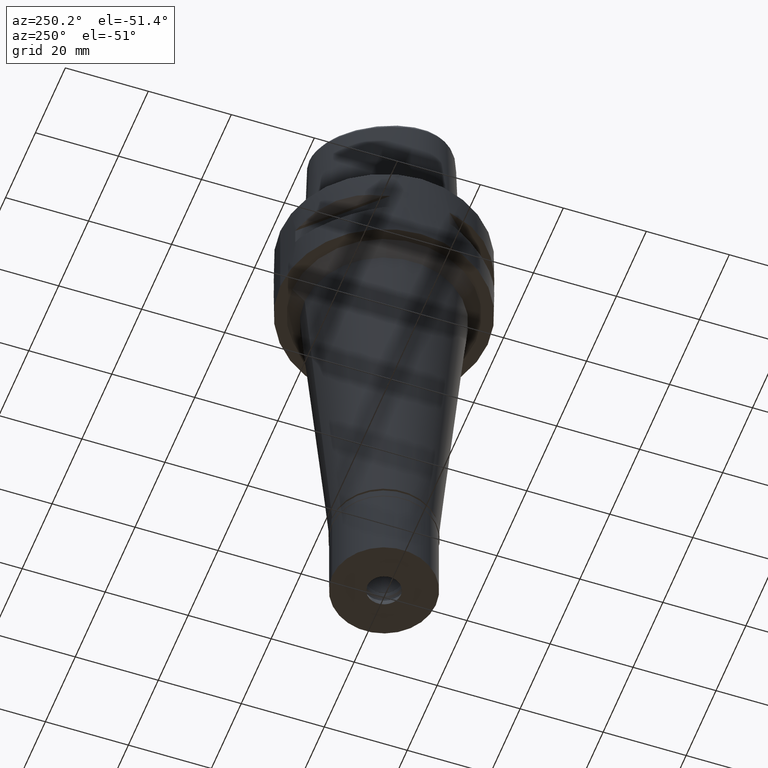
[diagram: clean part render]
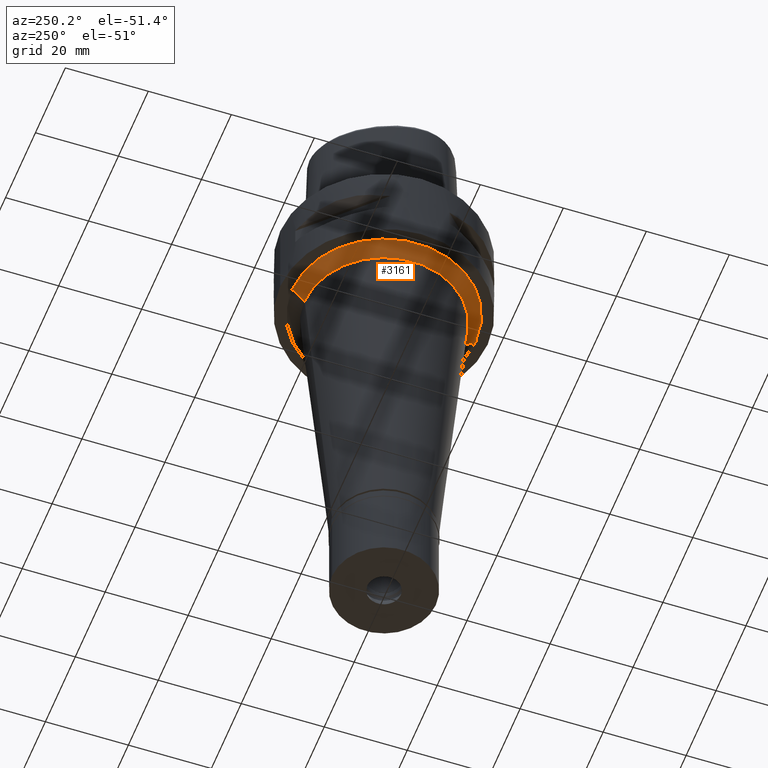
[diagram: same view with one face highlighted and labeled with its STEP entity id]
A machine part, auxiliary view. The second image highlights one B-rep face of the part: STEP entity #3161.
In plain terms, the highlighted conical surface has half-angle 45 deg.
Its self-contained STEP definition (entity closure, byte-faithful):
#301 = CONICAL_SURFACE ( 'NONE', #3428, 20.62289182890999939, 0.7853981633972997312 ) ;
#320 = CARTESIAN_POINT ( 'NONE',  ( 0.0000000000000000000, -22.12289182890999939, -20.00000000000000000 ) ) ;
#371 = VERTEX_POINT ( 'NONE', #434 ) ;
#392 = VERTEX_POINT ( 'NONE', #1990 ) ;
#434 = CARTESIAN_POINT ( 'NONE',  ( 0.0000000000000000000, 22.12289182890999939, -20.00000000000000000 ) ) ;
#457 = EDGE_CURVE ( 'NONE', #3805, #3162, #2167, .T. ) ;
#757 = CARTESIAN_POINT ( 'NONE',  ( 0.0000000000000000000, 0.0000000000000000000, -23.00000000000000000 ) ) ;
#1047 = EDGE_CURVE ( 'NONE', #392, #3805, #2226, .T. ) ;
#1049 = FACE_OUTER_BOUND ( 'NONE', #4550, .T. ) ;
#1148 = DIRECTION ( 'NONE',  ( 0.0000000000000000000, 1.000000000000000000, 0.0000000000000000000 ) ) ;
#1176 = CIRCLE ( 'NONE', #3752, 22.12289182890999939 ) ;
#1363 = LINE ( 'NONE', #2191, #4377 ) ;
#1414 = VECTOR ( 'NONE', #1855, 999.9999999999998863 ) ;
#1855 = DIRECTION ( 'NONE',  ( 0.0000000000000000000, 0.7071067811860981545, -0.7071067811869969910 ) ) ;
#1990 = CARTESIAN_POINT ( 'NONE',  ( 0.0000000000000000000, -22.12289182890999939, -20.00000000000000000 ) ) ;
#2031 = ORIENTED_EDGE ( 'NONE', *, *, #1047, .F. ) ;
#2166 = DIRECTION ( 'NONE',  ( 0.0000000000000000000, -0.7071067811860981545, -0.7071067811869969910 ) ) ;
#2167 = CIRCLE ( 'NONE', #2967, 19.12289182891000294 ) ;
#2191 = CARTESIAN_POINT ( 'NONE',  ( 0.0000000000000000000, 22.12289182890999939, -20.00000000000000000 ) ) ;
#2226 = LINE ( 'NONE', #320, #1414 ) ;
#2308 = DIRECTION ( 'NONE',  ( 0.0000000000000000000, 0.0000000000000000000, 1.000000000000000000 ) ) ;
#2493 = DIRECTION ( 'NONE',  ( 0.0000000000000000000, 0.0000000000000000000, -1.000000000000000000 ) ) ;
#2575 = CARTESIAN_POINT ( 'NONE',  ( 0.0000000000000000000, 19.12289182891000294, -23.00000000000000000 ) ) ;
#2967 = AXIS2_PLACEMENT_3D ( 'NONE', #757, #4198, #4572 ) ;
#2971 = ORIENTED_EDGE ( 'NONE', *, *, #3013, .T. ) ;
#3013 = EDGE_CURVE ( 'NONE', #392, #371, #1176, .T. ) ;
#3077 = EDGE_CURVE ( 'NONE', #371, #3162, #1363, .T. ) ;
#3142 = ORIENTED_EDGE ( 'NONE', *, *, #457, .F. ) ;
#3161 = ADVANCED_FACE ( 'NONE', ( #1049 ), #301, .T. ) ;
#3162 = VERTEX_POINT ( 'NONE', #2575 ) ;
#3412 = CARTESIAN_POINT ( 'NONE',  ( 0.0000000000000000000, -19.12289182891000294, -23.00000000000000000 ) ) ;
#3428 = AXIS2_PLACEMENT_3D ( 'NONE', #3819, #2308, #1148 ) ;
#3649 = CARTESIAN_POINT ( 'NONE',  ( 0.0000000000000000000, 0.0000000000000000000, -20.00000000000000000 ) ) ;
#3752 = AXIS2_PLACEMENT_3D ( 'NONE', #3649, #2493, #4448 ) ;
#3805 = VERTEX_POINT ( 'NONE', #3412 ) ;
#3819 = CARTESIAN_POINT ( 'NONE',  ( 0.0000000000000000000, 0.0000000000000000000, -21.50000000000000000 ) ) ;
#4198 = DIRECTION ( 'NONE',  ( 0.0000000000000000000, 0.0000000000000000000, -1.000000000000000000 ) ) ;
#4377 = VECTOR ( 'NONE', #2166, 999.9999999999998863 ) ;
#4448 = DIRECTION ( 'NONE',  ( 0.0000000000000000000, -1.000000000000000000, 0.0000000000000000000 ) ) ;
#4550 = EDGE_LOOP ( 'NONE', ( #3142, #2031, #2971, #4725 ) ) ;
#4572 = DIRECTION ( 'NONE',  ( 0.0000000000000000000, -1.000000000000000000, 0.0000000000000000000 ) ) ;
#4725 = ORIENTED_EDGE ( 'NONE', *, *, #3077, .T. ) ;